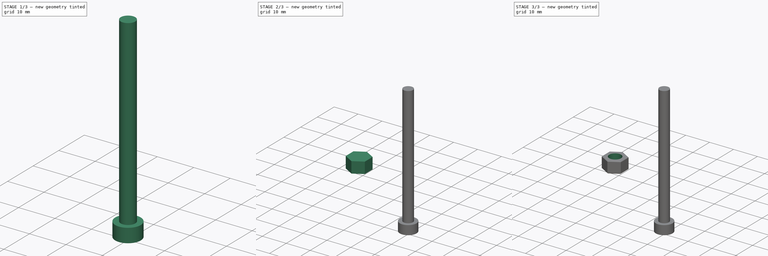
[diagram: build sequence overview — one tinted view per stage of 3, left to right]
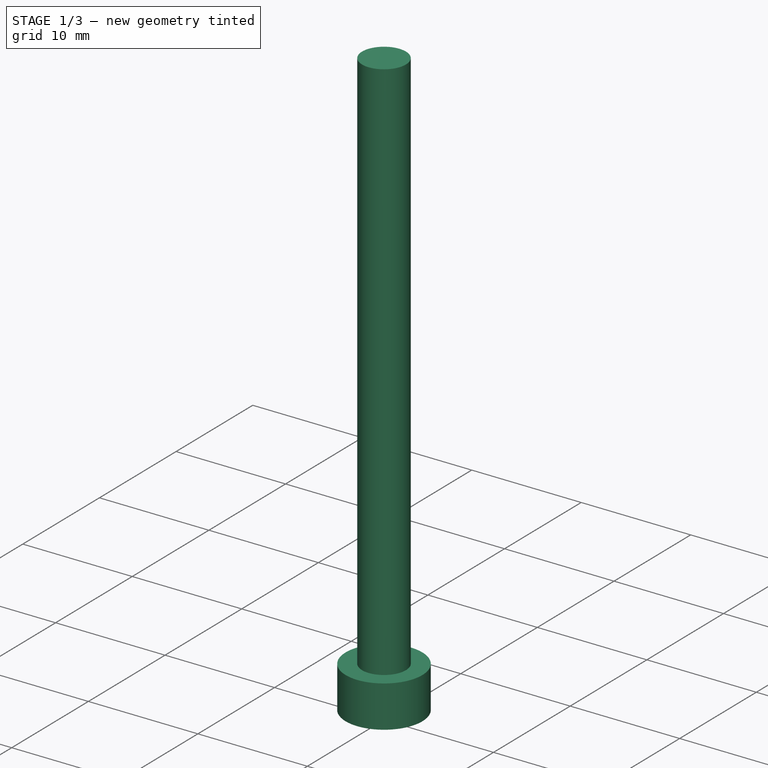
[diagram: stage 1 of 3 — iso view after this stage's code; geometry added in this stage tinted green]
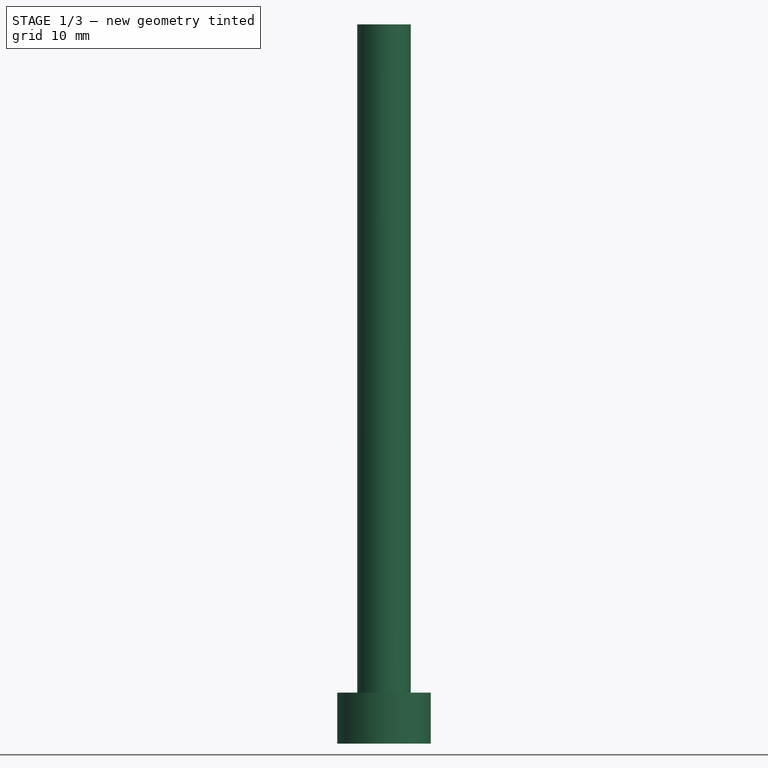
[diagram: stage 1 of 3 — front view after this stage's code; geometry added in this stage tinted green]
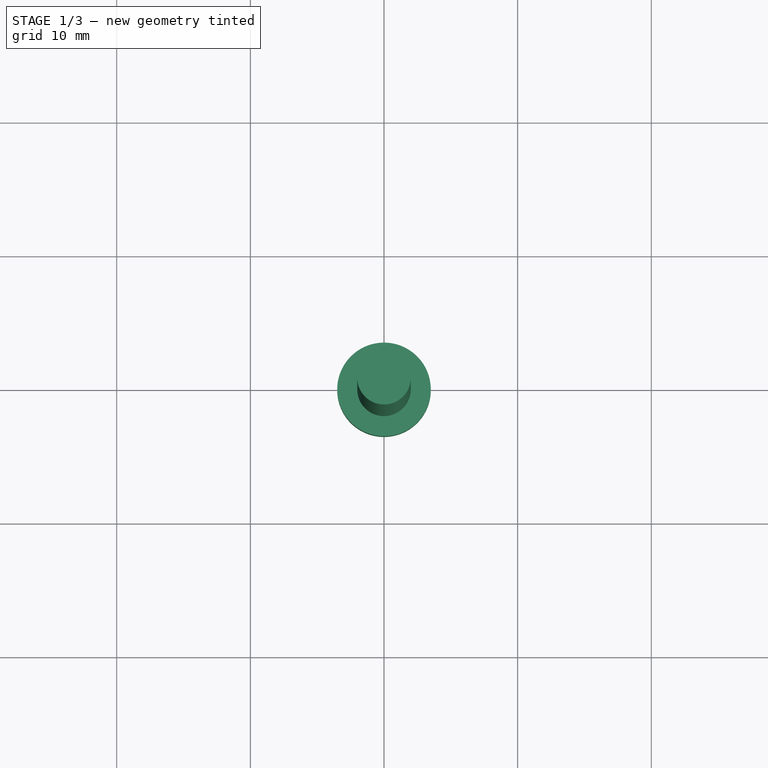
[diagram: stage 1 of 3 — top view after this stage's code; geometry added in this stage tinted green]
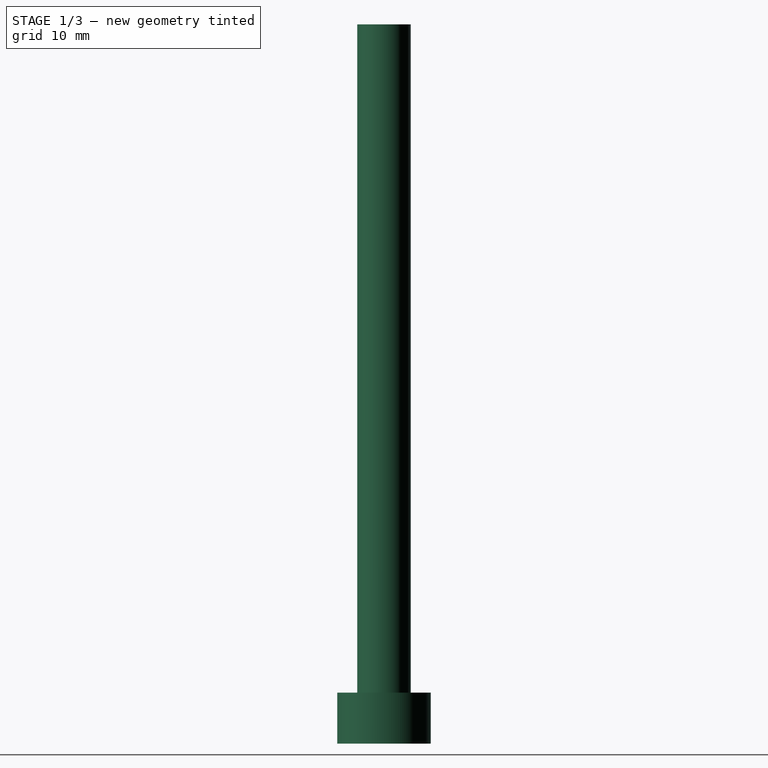
[diagram: stage 1 of 3 — right view after this stage's code; geometry added in this stage tinted green]
FCSTD DOCUMENT  (FreeCAD 0.15R3904 (Git))
Label: Tornilleria
License: CC-BY 3.0
LicenseURL: http://creativecommons.org/licenses/by/3.0/
objects: Part::Feature×19, App::DocumentObjectGroup×5, Sketcher::SketchObject×4, PartDesign::Pad×2, PartDesign::Pocket×2, PartDesign::Chamfer×1, Part::Cylinder×1
note: 33 computed .brp shape members not serialized (recipe doc carries the construction recipe); baked Part::Feature solids carry a one-line shape summary decoded from their .brp

FEATURE [App::DocumentObjectGroup] Group001  label="Tuerca-Parametrica"
  Group = -> [Pad,Pocket,Chamfer]
FEATURE [Part::Feature] Chamfer001  label="M3Tuerca"
  shape: bbox 5.5 x 6.351 x 2.4 mm, 21 faces (baked)
FEATURE [Part::Feature] Chamfer002  label="M4Tuerca"
  Placement = pos=(15,0,0) rot=(0,0,1;0rad)
  shape: bbox 7 x 8.083 x 3.2 mm, 21 faces (baked)
FEATURE [Part::Feature] Chamfer003  label="M5Tuerca"
  Placement = pos=(30,0,0) rot=(0,0,1;0rad)
  shape: bbox 8 x 9.238 x 4.7 mm, 21 faces (baked)
FEATURE [Part::Cylinder] Cylinder  label="Cabeza"
  Angle = 360
  Height = 3.82
  Radius = 3.5
FEATURE [Sketcher::SketchObject] Sketch002
  Placement = pos=(0,0,3.82) rot=(0,0,1;0rad)
  Support = -> Cylinder [Face2]
  sketch-geometry (1):
    g0: Circle CenterX=0 CenterY=0 CenterZ=0 NormalX=0 NormalY=0 NormalZ=1 Radius=2
  constraints (2):
    c: Coincident(g0,g-1)
    c: Radius(g0) = 2
FEATURE [PartDesign::Pad] Pad001  label="tornillo"
  Length = 50
  Length2 = 100
  Sketch = -> Sketch002
  Type = 0
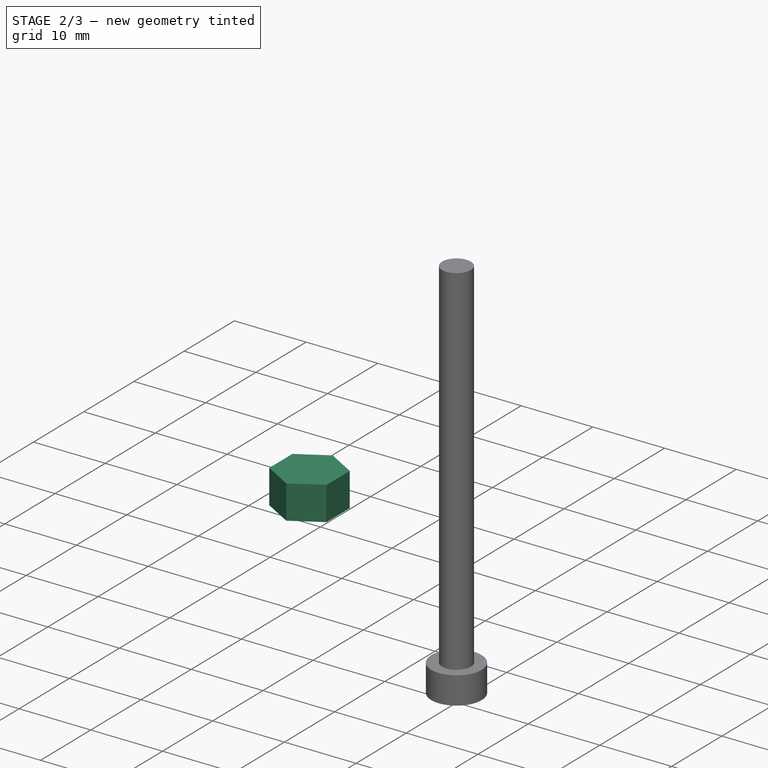
[diagram: stage 2 of 3 — iso view after this stage's code; geometry added in this stage tinted green]
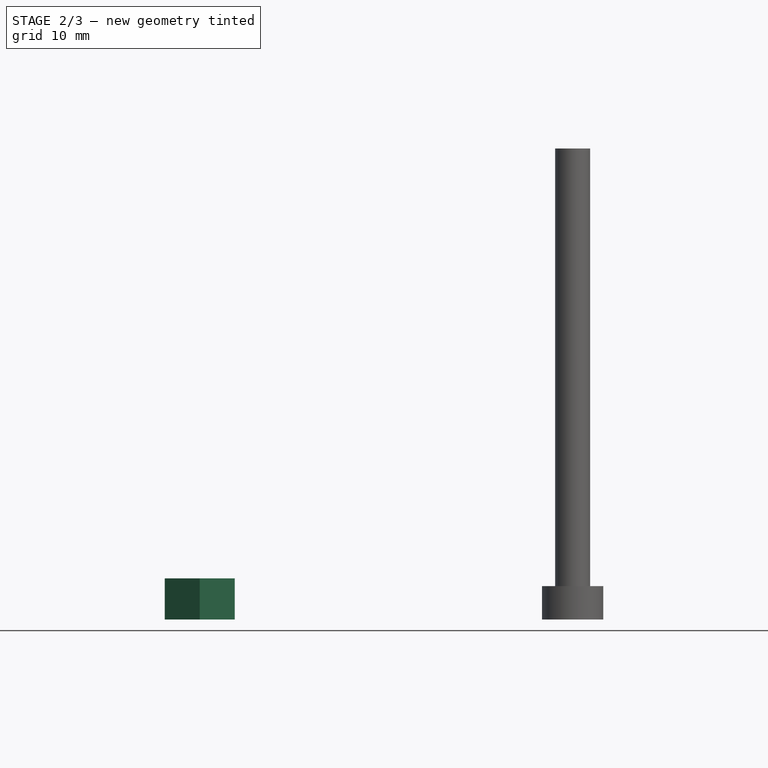
[diagram: stage 2 of 3 — front view after this stage's code; geometry added in this stage tinted green]
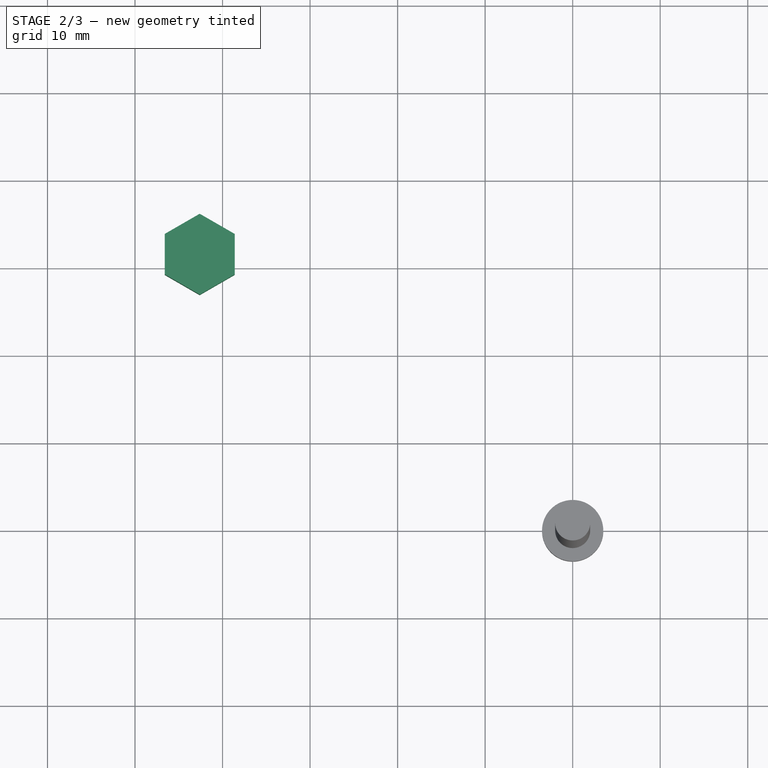
[diagram: stage 2 of 3 — top view after this stage's code; geometry added in this stage tinted green]
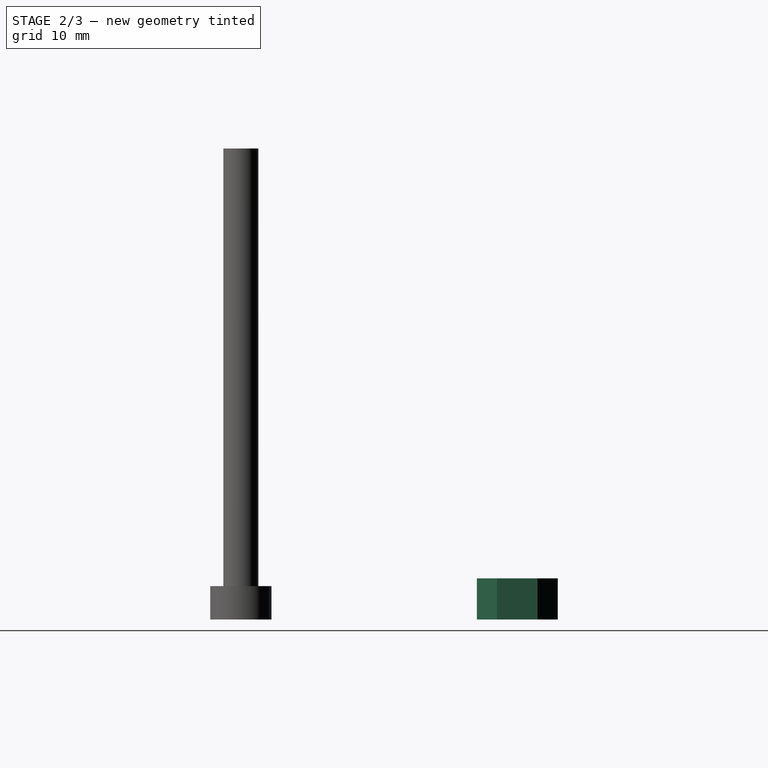
[diagram: stage 2 of 3 — right view after this stage's code; geometry added in this stage tinted green]
FEATURE [Sketcher::SketchObject] Sketch
  sketch-geometry (7):
    g0: LineSegment StartX=-38.6096 StartY=29.262 StartZ=0 EndX=-38.6096 EndY=33.8808 EndZ=0
    g1: LineSegment StartX=-38.6096 StartY=33.8808 StartZ=0 EndX=-42.6096 EndY=36.1902 EndZ=0
    g2: LineSegment StartX=-42.6096 StartY=36.1902 StartZ=0 EndX=-46.6096 EndY=33.8808 EndZ=0
    g3: LineSegment StartX=-46.6096 StartY=33.8808 StartZ=0 EndX=-46.6096 EndY=29.262 EndZ=0
    g4: LineSegment StartX=-46.6096 StartY=29.262 StartZ=0 EndX=-42.6096 EndY=26.9526 EndZ=0
    g5: LineSegment StartX=-42.6096 StartY=26.9526 StartZ=0 EndX=-38.6096 EndY=29.262 EndZ=0
    g6: Circle [constr] CenterX=-42.6096 CenterY=31.5714 CenterZ=0 NormalX=0 NormalY=0 NormalZ=1 Radius=4.6188
  constraints (15):
    c: Coincident(g0,g1)
    c: Coincident(g1,g2)
    c: Coincident(g2,g3)
    c: Coincident(g3,g4)
    c: Coincident(g4,g5)
    c: Coincident(g5,g0)
    c: Equal(g0, g1-g5) x5
    c: PointOnObject(g0,g6)
    c: PointOnObject(g1,g6)
    c: PointOnObject(g2,g6)
    c: PointOnObject(g3,g6)
    c: PointOnObject(g4,g6)
    c: PointOnObject(g5,g6)
    c: Distance(g0,g3) = 8
    c: Vertical(g0)
FEATURE [PartDesign::Pad] Pad  label="Hexagono"
  Length = 4.7
  Length2 = 100
  Sketch = -> Sketch
  Type = 0
FEATURE [Sketcher::SketchObject] Sketch003
  ExternalGeometry = -> [Pad001]
  Placement = pos=(0,0,0) rot=(1,0,0;3.14159rad)
  Support = -> Pad001 [Face3]
  sketch-geometry (7):
    g0: LineSegment StartX=1.73205 StartY=1 StartZ=0 EndX=0 EndY=2 EndZ=0
    g1: LineSegment StartX=0 StartY=2 StartZ=0 EndX=-1.73205 EndY=1 EndZ=0
    g2: LineSegment StartX=-1.73205 StartY=1 StartZ=0 EndX=-1.73205 EndY=-1 EndZ=0
    g3: LineSegment StartX=-1.73205 StartY=-1 StartZ=0 EndX=0 EndY=-2 EndZ=0
    g4: LineSegment StartX=0 StartY=-2 StartZ=0 EndX=1.73205 EndY=-1 EndZ=0
    g5: LineSegment StartX=1.73205 StartY=-1 StartZ=0 EndX=1.73205 EndY=1 EndZ=0
    g6: Circle [constr] CenterX=0 CenterY=0 CenterZ=0 NormalX=0 NormalY=0 NormalZ=1 Radius=2
  constraints (17):
    c: Coincident(g0,g1)
    c: Coincident(g1,g2)
    c: Coincident(g2,g3)
    c: Coincident(g3,g4)
    c: Coincident(g4,g5)
    c: Coincident(g5,g0)
    c: Equal(g0, g1-g5) x5
    c: PointOnObject(g0,g6)
    c: PointOnObject(g1,g6)
    c: PointOnObject(g2,g6)
    c: PointOnObject(g3,g6)
    c: PointOnObject(g4,g6)
    c: PointOnObject(g5,g6)
    c: Coincident(g3,g-1)
    c: Vertical(g5)
    c: Radius(g6) = 2
    c: Coincident(g6,g-1)
FEATURE [PartDesign::Pocket] Pocket001  label="ranura"
  Length = 3
  Sketch = -> Sketch003
  Type = 0
FEATURE [App::DocumentObjectGroup] Group002  label="Tornillo-parametrico"
  Group = -> [Cylinder,Pad001,Pocket001]
FEATURE [Part::Feature] Pocket001001  label="M3-5-Tornillo"
  Placement = pos=(-43,15,0) rot=(0,0,1;0rad)
  shape: bbox 5.5 x 5.5 x 7.86 mm, 12 faces (baked)
FEATURE [Part::Feature] Pad001001  label="M3-10-Tornillo"
  Placement = pos=(-43,0,0) rot=(0,0,1;0rad)
  shape: bbox 5.5 x 5.5 x 12.86 mm, 5 faces (baked)
FEATURE [Part::Feature] Pocket001002  label="M3-15-Tornillo"
  Placement = pos=(-43,-15,0) rot=(0,0,1;0rad)
  shape: bbox 5.5 x 5.5 x 17.86 mm, 12 faces (baked)
FEATURE [Part::Feature] Pocket001003  label="M3-20-Tornillo"
  Placement = pos=(-43,-30,0) rot=(0,0,1;0rad)
  shape: bbox 5.5 x 5.5 x 22.86 mm, 12 faces (baked)
FEATURE [Part::Feature] Pocket001004  label="M3-25-Tornillo"
  Placement = pos=(-43,-45,0) rot=(0,0,1;0rad)
  shape: bbox 5.5 x 5.5 x 27.86 mm, 12 faces (baked)
FEATURE [Part::Feature] Pocket001005  label="M3-30-Tornillo"
  Placement = pos=(-43,-60,0) rot=(0,0,1;0rad)
  shape: bbox 5.5 x 5.5 x 32.86 mm, 12 faces (baked)
FEATURE [Part::Feature] Pocket001006  label="M4-5-Tornillo"
  Placement = pos=(-28,15,0) rot=(0,0,1;0rad)
  shape: bbox 7 x 7 x 8.82 mm, 12 faces (baked)
FEATURE [Part::Feature] Pocket001007  label="M4-10-Tornillo"
  Placement = pos=(-28,0,0) rot=(0,0,1;0rad)
  shape: bbox 7 x 7 x 13.82 mm, 12 faces (baked)
FEATURE [Part::Feature] Pocket001008  label="M4-15-Tornillo"
  Placement = pos=(-28,-15,0) rot=(0,0,1;0rad)
  shape: bbox 7 x 7 x 18.82 mm, 12 faces (baked)
FEATURE [Part::Feature] Pocket001009  label="M4-20-Tornillo"
  Placement = pos=(-28,-30,0) rot=(0,0,1;0rad)
  shape: bbox 7 x 7 x 23.82 mm, 12 faces (baked)
FEATURE [Part::Feature] Pocket001010  label="M4-25-Tornillo"
  Placement = pos=(-28,-45,0) rot=(0,0,1;0rad)
  shape: bbox 7 x 7 x 28.82 mm, 12 faces (baked)
FEATURE [Part::Feature] Pocket001011  label="M4-30-Tornillo"
  Placement = pos=(-28,-60,0) rot=(0,0,1;0rad)
  shape: bbox 7 x 7 x 33.82 mm, 12 faces (baked)
FEATURE [Part::Feature] Pocket001012  label="M4-35-Tornillo"
  Placement = pos=(-28,-75,0) rot=(0,0,1;0rad)
  shape: bbox 7 x 7 x 38.82 mm, 12 faces (baked)
FEATURE [Part::Feature] Pocket001013  label="M4-40-Tornillo"
  Placement = pos=(-28,-90,0) rot=(0,0,1;0rad)
  shape: bbox 7 x 7 x 43.82 mm, 12 faces (baked)
FEATURE [Part::Feature] Pocket001014  label="M4-45-Tornillo"
  Placement = pos=(-28,-105,0) rot=(0,0,1;0rad)
  shape: bbox 7 x 7 x 48.82 mm, 12 faces (baked)
FEATURE [Part::Feature] Pocket001015  label="M4-50-Tornillo"
  Placement = pos=(-28,-120,0) rot=(0,0,1;0rad)
  shape: bbox 7 x 7 x 53.82 mm, 12 faces (baked)
FEATURE [App::DocumentObjectGroup] Group  label="M3"
  Group = -> [Chamfer001,Pocket001001,Pad001001,Pocket001002,Pocket001003,Pocket001004,Pocket001005]
FEATURE [App::DocumentObjectGroup] Group003  label="M4"
  Group = -> [Chamfer002,Pocket001006,Pocket001007,Pocket001008,Pocket001009,Pocket001010,Pocket001011,Pocket001012,Pocket001013,Pocket001014,Pocket001015]
FEATURE [App::DocumentObjectGroup] Group004  label="M5"
  Group = -> [Chamfer003]
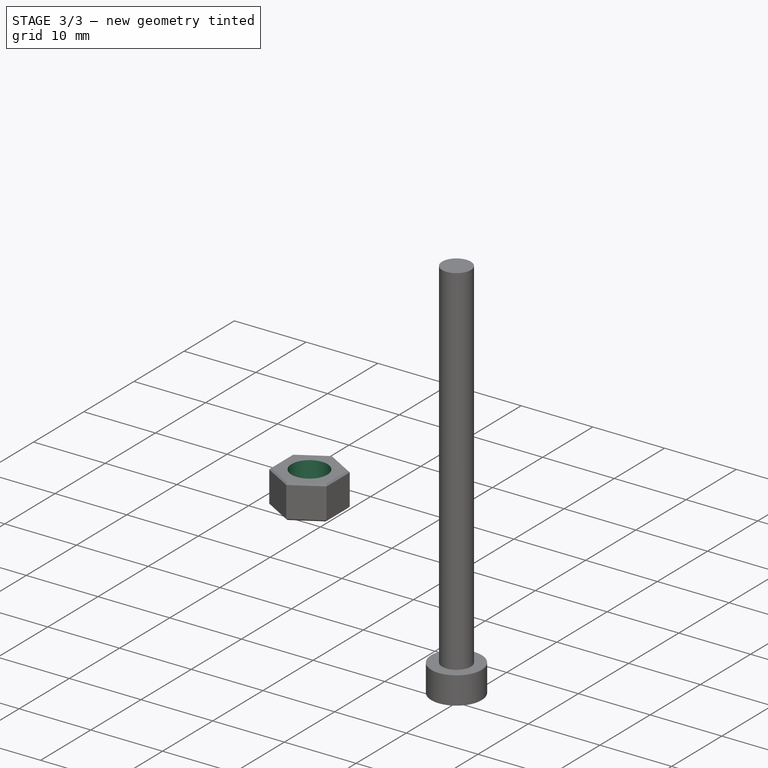
[diagram: stage 3 of 3 — iso view after this stage's code; geometry added in this stage tinted green]
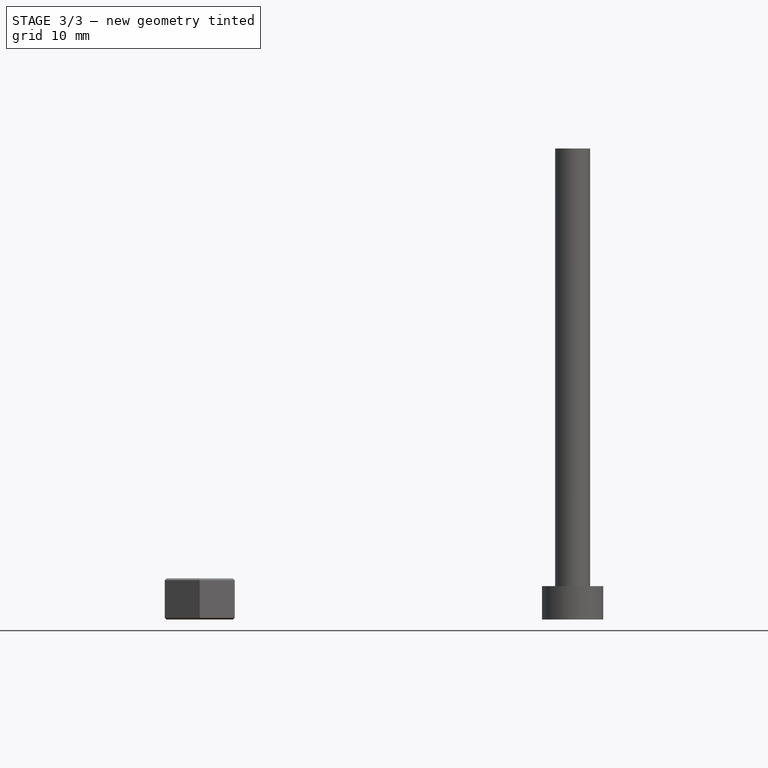
[diagram: stage 3 of 3 — front view after this stage's code; geometry added in this stage tinted green]
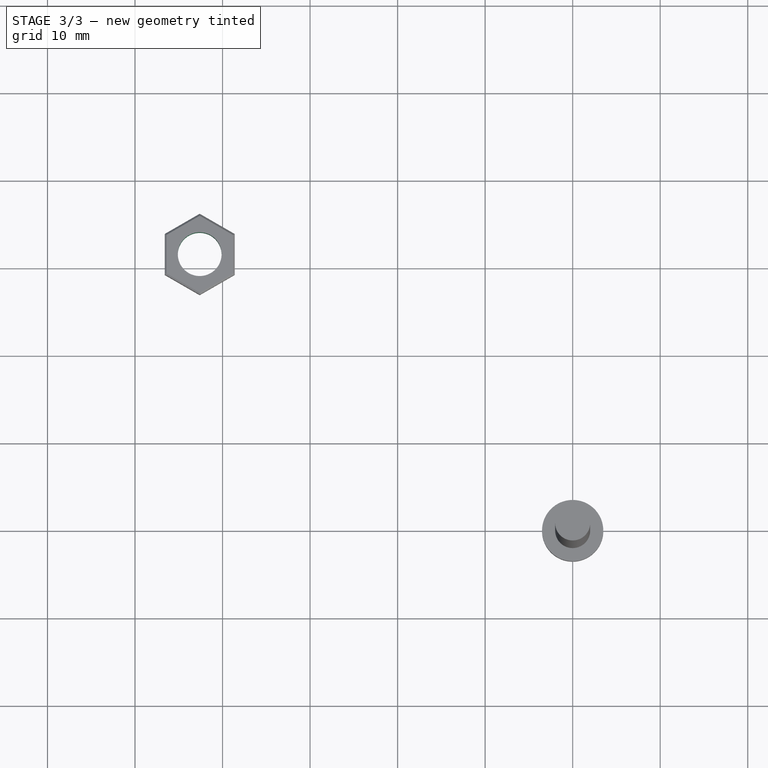
[diagram: stage 3 of 3 — top view after this stage's code; geometry added in this stage tinted green]
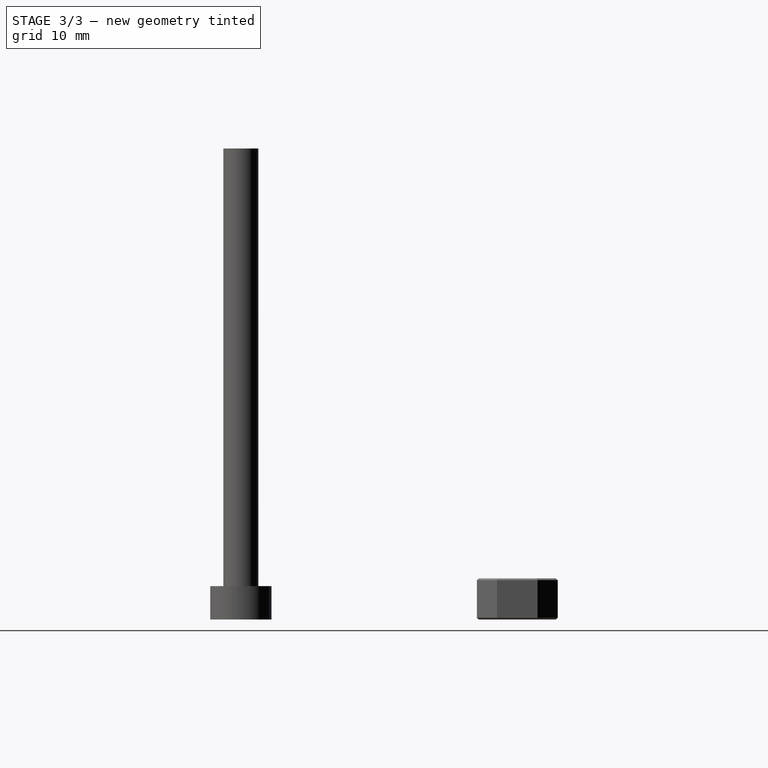
[diagram: stage 3 of 3 — right view after this stage's code; geometry added in this stage tinted green]
FEATURE [Sketcher::SketchObject] Sketch001
  ExternalGeometry = -> [Pad]
  Placement = pos=(0,0,4.7) rot=(0,0,1;0rad)
  Support = -> Pad [Face8]
  sketch-geometry (3):
    g0: LineSegment [constr] StartX=-38.6096 StartY=33.8808 StartZ=0 EndX=-46.6096 EndY=29.262 EndZ=0
    g1: LineSegment [constr] StartX=-46.6096 StartY=33.8808 StartZ=0 EndX=-38.6096 EndY=29.262 EndZ=0
    g2: Circle CenterX=-42.6096 CenterY=31.5714 CenterZ=0 NormalX=0 NormalY=0 NormalZ=1 Radius=2.5
  constraints (7):
    c: Coincident(g0,g-3)
    c: Coincident(g0,g-4)
    c: Coincident(g1,g-4)
    c: Coincident(g1,g-3)
    c: PointOnObject(g2,g0)
    c: PointOnObject(g2,g1)
    c: Radius(g2) = 2.5
FEATURE [PartDesign::Pocket] Pocket  label="Agujero"
  Length = 4.7
  Sketch = -> Sketch001
  Type = 0
FEATURE [PartDesign::Chamfer] Chamfer  label="Redondeo"
  Base = -> Pocket [Edge7,Edge4,Edge10,Edge16,Edge17,Edge15,Edge11,Edge13,Edge12,Edge9,Edge3,Edge6]
  Size = 0.2
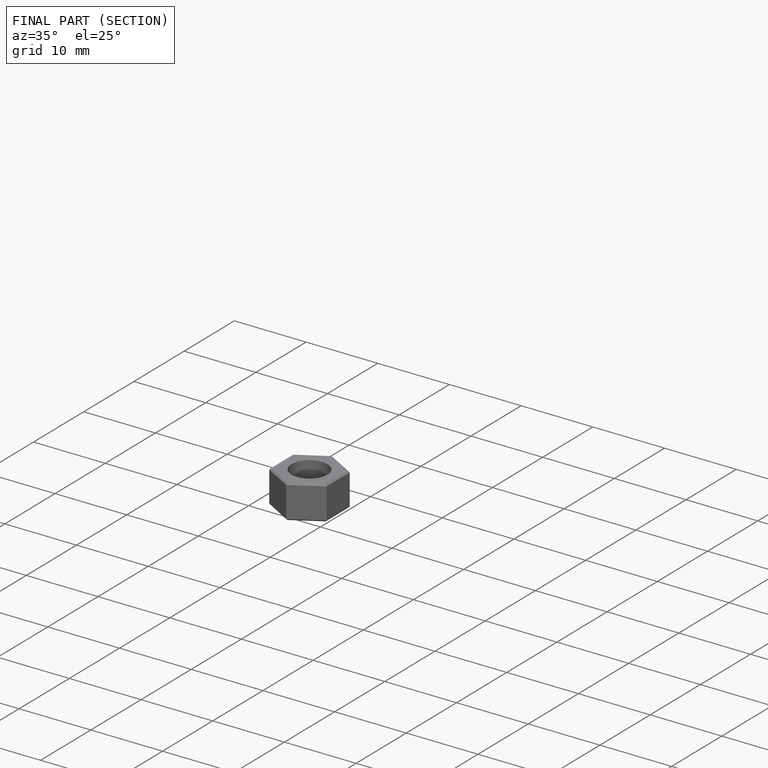
[diagram: finished part — half-section view (interior)]
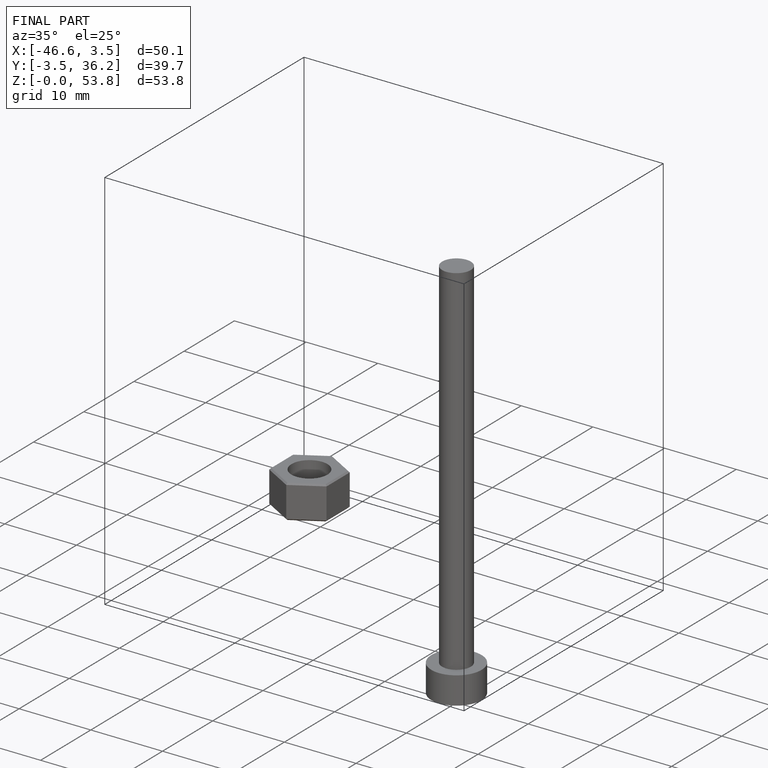
[diagram: finished part — iso view with bounding-box wireframe]
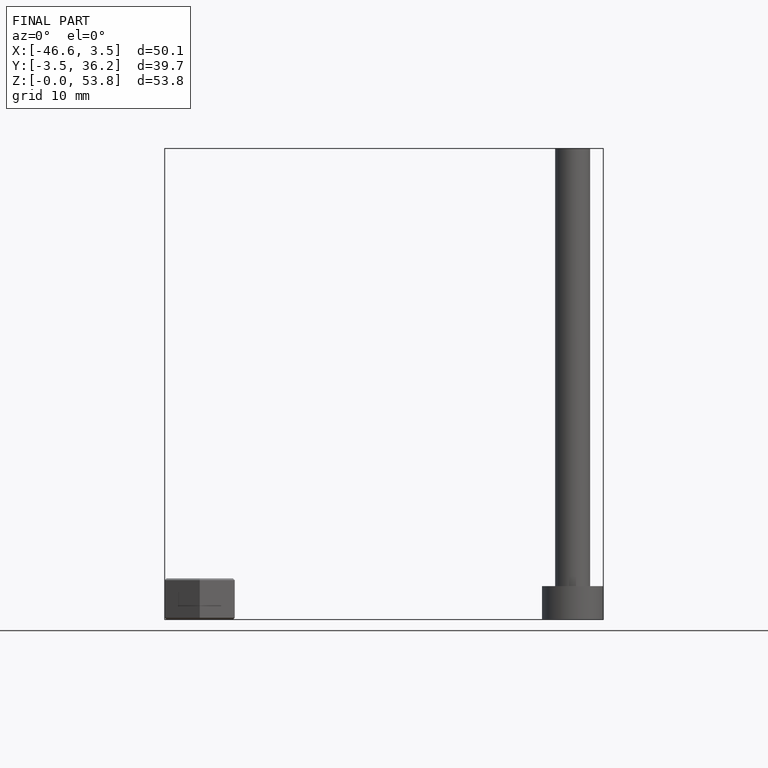
[diagram: finished part — front view with bounding-box wireframe]
